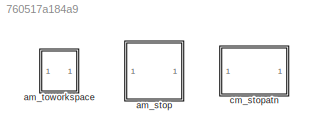
MODEL slx_760517a184a9
KIND library
CONFIG AbsTol = auto
CONFIG EnableMultiTasking = off
CONFIG FixedStep = auto
CONFIG MaxStep = auto
CONFIG MinStep = auto
CONFIG RelTol = 1e-3
CONFIG SampleTimeConstraint = Unconstrained
CONFIG SolverName = VariableStepAuto
CONFIG StartTime = 0.0
CONFIG StopTime = 10.0
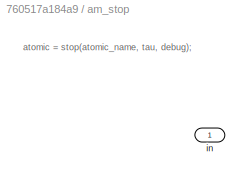
BLOCK [SubSystem] am_stop
BLOCK [Inport] am_stop/in
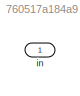
BLOCK [SubSystem] am_toworkspace
  ShowPortLabels = none
  TreatAsAtomicUnit = on
BLOCK [Inport] am_toworkspace/in
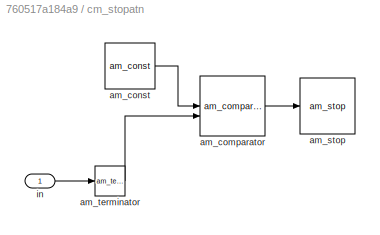
BLOCK [SubSystem] cm_stopatn
BLOCK [Reference] cm_stopatn/am_comparator  REF=NSA_DEVS_MATH_OPERATIONS/am_comparator
  SourceBlock = NSA_DEVS_MATH_OPERATIONS/am_comparator
  SourceProductName = Math Operations
  SourceType = Comparator
BLOCK [Reference] cm_stopatn/am_const  REF=NSA_DEVS_SOURCES/am_const
  SourceBlock = NSA_DEVS_SOURCES/am_const
  SourceProductName = Sources
  SourceType = Const
BLOCK [Reference] cm_stopatn/am_stop  REF=$bdroot/am_stop
  SourceBlock = $bdroot/am_stop
  SourceType = Stop
BLOCK [Reference] cm_stopatn/am_terminator  REF=NSA_DEVS_LOGISTICS/am_terminator
  SourceBlock = NSA_DEVS_LOGISTICS/am_terminator
  SourceProductName = Logistics
  SourceType = Terminator
BLOCK [Inport] cm_stopatn/in
ANNOTATION am_stop: atomic = stop(atomic_name, tau, debug);
LINE cm_stopatn/am_comparator:1 -> cm_stopatn/am_stop:1
LINE cm_stopatn/am_const:1 -> cm_stopatn/am_comparator:1
LINE cm_stopatn/am_terminator:1 -> cm_stopatn/am_comparator:2
LINE cm_stopatn/in:1 -> cm_stopatn/am_terminator:1
